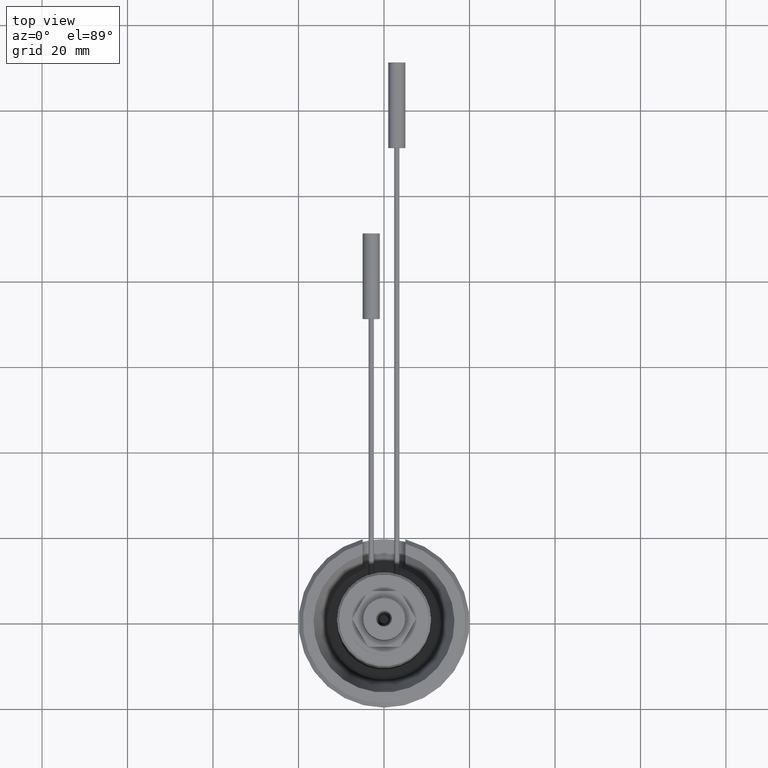
[diagram: clean part render]
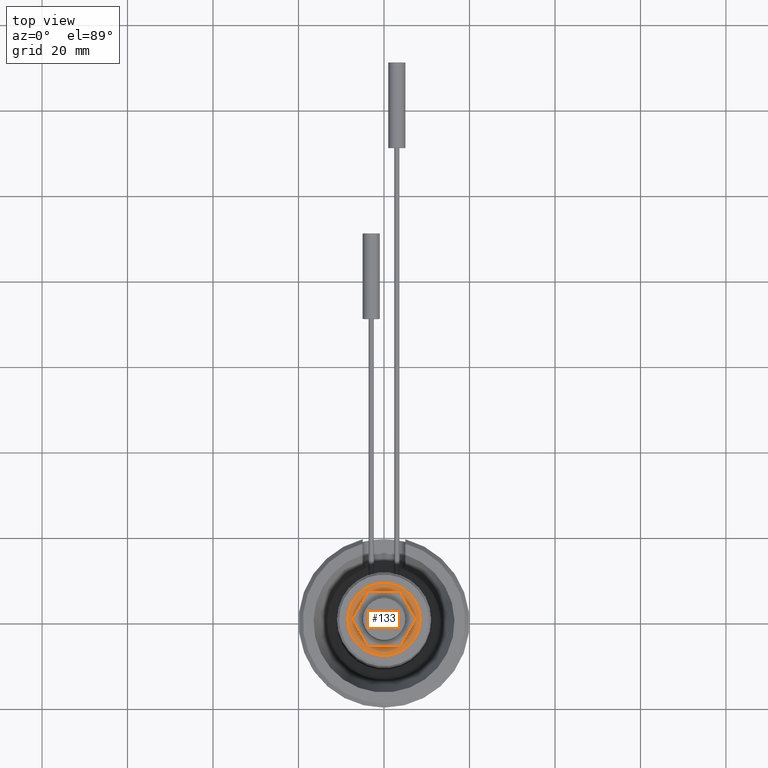
[diagram: same view with one face highlighted and labeled with its STEP entity id]
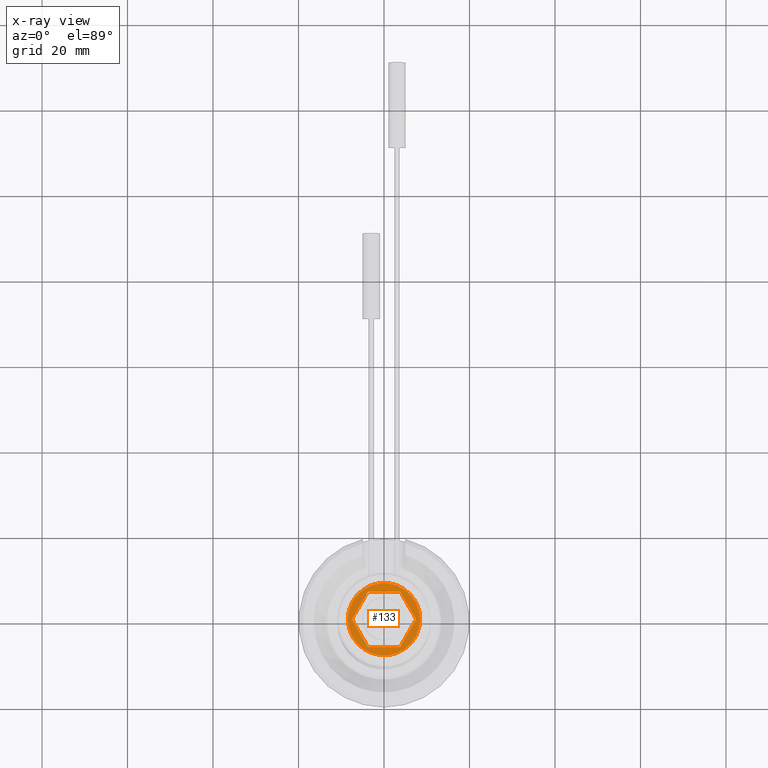
[diagram: x-ray of the same camera — body ghosted, the highlighted face saturated]
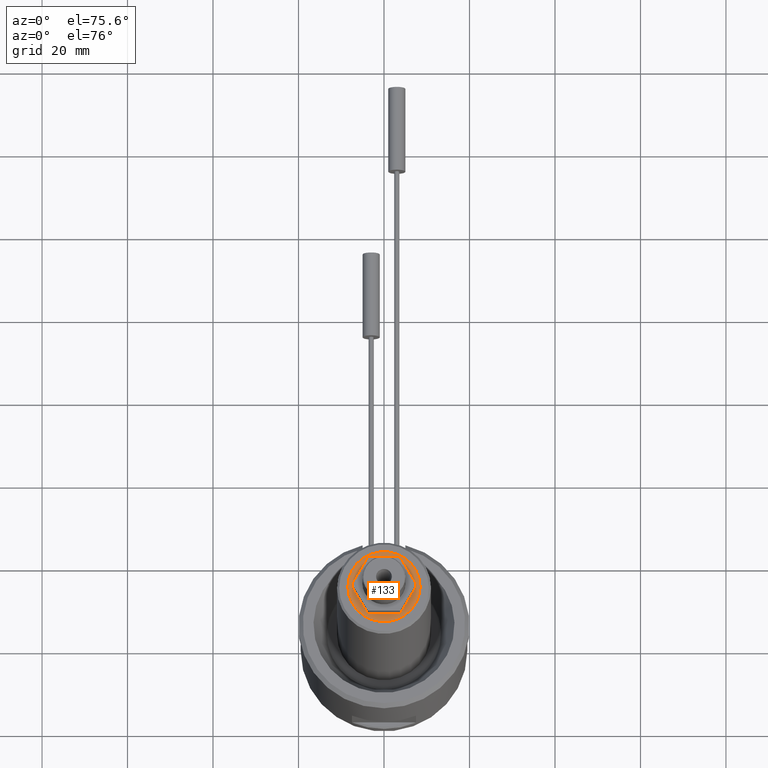
[diagram: same view with one face highlighted and labeled with its STEP entity id]
A machine part, top view. The second image highlights one B-rep face of the part: STEP entity #133.
The next image is the same camera in x-ray: the body ghosted, the highlighted face saturated — about 0% of this face is hidden behind the body in this view.
A second angle (auxiliary view) of the same face is appended — the face is thin or edge-on in the first view.
In plain terms, the highlighted planar face has unit normal (0, 0, -1).
Its self-contained STEP definition (entity closure, byte-faithful):
#133=ADVANCED_FACE('',(#314,#315),#189,.F.);
#189=PLANE('',#980);
#232=LINE('',#1539,#276);
#233=LINE('',#1543,#277);
#234=LINE('',#1544,#278);
#235=LINE('',#1545,#279);
#236=LINE('',#1546,#280);
#237=LINE('',#1547,#281);
#276=VECTOR('',#1140,1.);
#277=VECTOR('',#1143,1.);
#278=VECTOR('',#1144,1.);
#279=VECTOR('',#1145,1.);
#280=VECTOR('',#1146,1.);
#281=VECTOR('',#1147,1.);
#314=FACE_BOUND('',#377,.T.);
#315=FACE_BOUND('',#378,.T.);
#377=EDGE_LOOP('',(#497,#498,#499,#500,#501,#502,#503,#504,#505,#506,#507,
#508));
#378=EDGE_LOOP('',(#509));
#497=ORIENTED_EDGE('',*,*,#802,.F.);
#498=ORIENTED_EDGE('',*,*,#815,.T.);
#499=ORIENTED_EDGE('',*,*,#816,.F.);
#500=ORIENTED_EDGE('',*,*,#817,.F.);
#501=ORIENTED_EDGE('',*,*,#797,.F.);
#502=ORIENTED_EDGE('',*,*,#818,.F.);
#503=ORIENTED_EDGE('',*,*,#793,.F.);
#504=ORIENTED_EDGE('',*,*,#819,.T.);
#505=ORIENTED_EDGE('',*,*,#799,.F.);
#506=ORIENTED_EDGE('',*,*,#820,.T.);
#507=ORIENTED_EDGE('',*,*,#806,.F.);
#508=ORIENTED_EDGE('',*,*,#821,.T.);
#509=ORIENTED_EDGE('',*,*,#814,.T.);
#705=VERTEX_POINT('',#1379);
#706=VERTEX_POINT('',#1380);
#707=VERTEX_POINT('',#1385);
#708=VERTEX_POINT('',#1387);
#709=VERTEX_POINT('',#1391);
#710=VERTEX_POINT('',#1392);
#711=VERTEX_POINT('',#1397);
#712=VERTEX_POINT('',#1398);
#713=VERTEX_POINT('',#1403);
#714=VERTEX_POINT('',#1405);
#721=VERTEX_POINT('',#1537);
#722=VERTEX_POINT('',#1540);
#723=VERTEX_POINT('',#1542);
#793=EDGE_CURVE('',#705,#706,#905,.T.);
#797=EDGE_CURVE('',#707,#708,#906,.T.);
#799=EDGE_CURVE('',#709,#710,#907,.T.);
#802=EDGE_CURVE('',#711,#712,#908,.T.);
#806=EDGE_CURVE('',#713,#714,#909,.T.);
#814=EDGE_CURVE('',#721,#721,#914,.T.);
#815=EDGE_CURVE('',#711,#722,#232,.T.);
#816=EDGE_CURVE('',#723,#722,#915,.T.);
#817=EDGE_CURVE('',#708,#723,#233,.T.);
#818=EDGE_CURVE('',#706,#707,#234,.T.);
#819=EDGE_CURVE('',#705,#710,#235,.T.);
#820=EDGE_CURVE('',#709,#714,#236,.T.);
#821=EDGE_CURVE('',#713,#712,#237,.T.);
#905=CIRCLE('',#961,7.45);
#906=CIRCLE('',#963,7.45);
#907=CIRCLE('',#965,7.45);
#908=CIRCLE('',#967,7.45);
#909=CIRCLE('',#969,7.45);
#914=CIRCLE('',#977,8.45);
#915=CIRCLE('',#979,7.45);
#961=AXIS2_PLACEMENT_3D('',#1378,#1094,#1095);
#963=AXIS2_PLACEMENT_3D('',#1386,#1101,#1102);
#965=AXIS2_PLACEMENT_3D('',#1390,#1106,#1107);
#967=AXIS2_PLACEMENT_3D('',#1396,#1112,#1113);
#969=AXIS2_PLACEMENT_3D('',#1404,#1119,#1120);
#977=AXIS2_PLACEMENT_3D('',#1536,#1136,#1137);
#979=AXIS2_PLACEMENT_3D('',#1541,#1141,#1142);
#980=AXIS2_PLACEMENT_3D('',#1548,#1148,#1149);
#1094=DIRECTION('',(0.,0.,1.));
#1095=DIRECTION('',(1.,0.,0.));
#1101=DIRECTION('',(0.,0.,1.));
#1102=DIRECTION('',(1.,0.,0.));
#1106=DIRECTION('',(0.,0.,1.));
#1107=DIRECTION('',(1.,0.,0.));
#1112=DIRECTION('',(0.,0.,1.));
#1113=DIRECTION('',(1.,0.,0.));
#1119=DIRECTION('',(0.,0.,1.));
#1120=DIRECTION('',(1.,0.,0.));
#1136=DIRECTION('',(0.,0.,1.));
#1137=DIRECTION('',(1.,0.,0.));
#1140=DIRECTION('',(-1.,-2.73999136442525E-15,0.));
#1141=DIRECTION('',(0.,0.,1.));
#1142=DIRECTION('',(1.,0.,0.));
#1143=DIRECTION('',(0.500000000000003,-0.866025403784437,0.));
#1144=DIRECTION('',(-0.499999999999996,-0.866025403784441,0.));
#1145=DIRECTION('',(1.,5.12259255088199E-15,0.));
#1146=DIRECTION('',(0.500000000000005,-0.866025403784436,0.));
#1147=DIRECTION('',(-0.499999999999994,-0.866025403784442,0.));
#1148=DIRECTION('',(0.,0.,-1.));
#1149=DIRECTION('',(-1.,0.,0.));
#1378=CARTESIAN_POINT('',(0.,0.,60.5000000000001));
#1379=CARTESIAN_POINT('',(-3.6403983298535,6.49999999999999,60.5000000000001));
#1380=CARTESIAN_POINT('',(-3.80896595967212,6.40267743354755,60.5));
#1385=CARTESIAN_POINT('',(-7.44936428952559,0.0973225664524279,60.5000000000001));
#1386=CARTESIAN_POINT('',(0.,0.,60.5000000000001));
#1387=CARTESIAN_POINT('',(-7.44936428952559,-0.0973225664524481,60.5));
#1390=CARTESIAN_POINT('',(0.,0.,60.5000000000001));
#1391=CARTESIAN_POINT('',(3.80896595967208,6.40267743354757,60.5000000000001));
#1392=CARTESIAN_POINT('',(3.64039832985346,6.50000000000001,60.5));
#1396=CARTESIAN_POINT('',(0.,0.,60.5000000000001));
#1397=CARTESIAN_POINT('',(3.64039832985348,-6.49999999999998,60.5));
#1398=CARTESIAN_POINT('',(3.80896595967214,-6.40267743354754,60.5));
#1403=CARTESIAN_POINT('',(7.44936428952559,-0.0973225664524036,60.5000000000001));
#1404=CARTESIAN_POINT('',(0.,0.,60.5000000000001));
#1405=CARTESIAN_POINT('',(7.44936428952559,0.0973225664524678,60.5));
#1536=CARTESIAN_POINT('',(0.,0.,60.5000000000001));
#1537=CARTESIAN_POINT('',(8.45,0.,60.5000000000001));
#1539=CARTESIAN_POINT('',(3.64039832985348,-6.49999999999998,60.5));
#1540=CARTESIAN_POINT('',(-3.64039832985348,-6.5,60.5));
#1541=CARTESIAN_POINT('',(0.,0.,60.5000000000001));
#1542=CARTESIAN_POINT('',(-3.8089659596721,-6.40267743354756,60.5000000000001));
#1543=CARTESIAN_POINT('',(-7.44936428952559,-0.0973225664524513,60.5));
#1544=CARTESIAN_POINT('',(-3.80896595967212,6.40267743354755,60.5));
#1545=CARTESIAN_POINT('',(-3.64039832985349,6.49999999999997,60.5));
#1546=CARTESIAN_POINT('',(3.80896595967208,6.40267743354756,60.5));
#1547=CARTESIAN_POINT('',(7.44936428952557,-0.0973225664524033,60.5));
#1548=CARTESIAN_POINT('',(-8.45,0.,60.5000000000001));